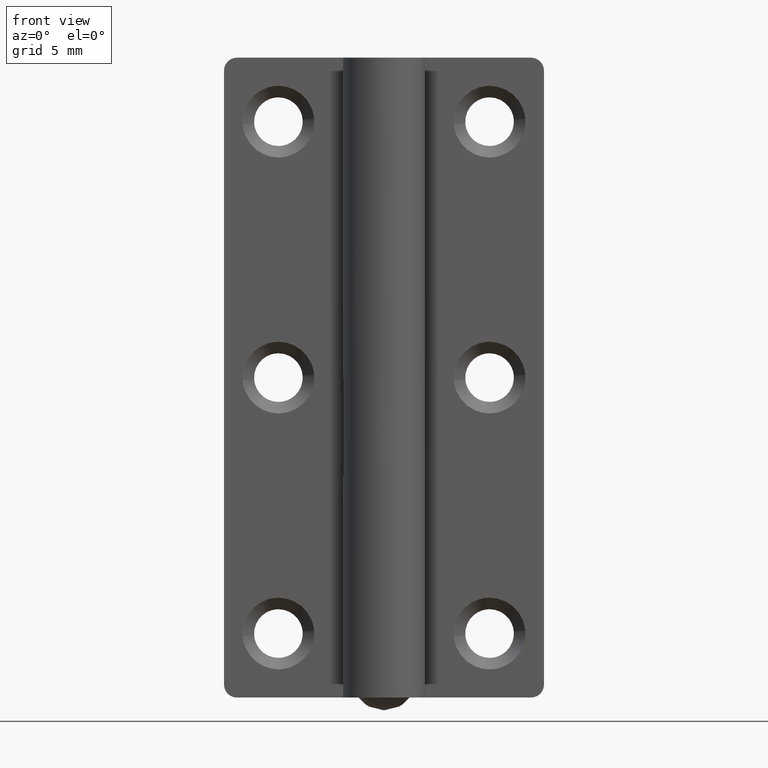
[diagram: clean part render]
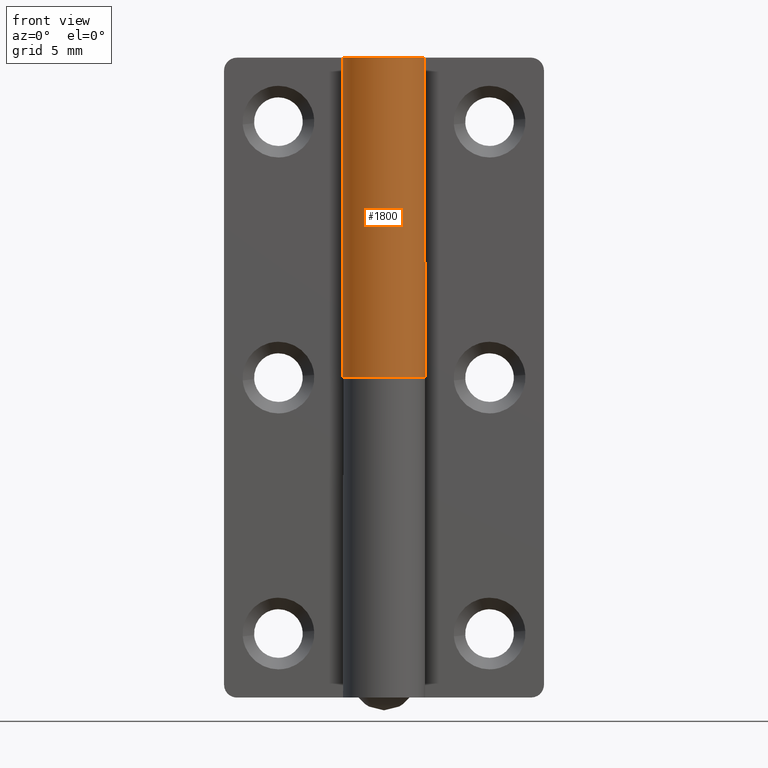
[diagram: same view with one face highlighted and labeled with its STEP entity id]
A machine part, front view. The second image highlights one B-rep face of the part: STEP entity #1800.
In plain terms, the highlighted face is a freeform B-spline surface patch.
Its self-contained STEP definition (entity closure, byte-faithful):
#1358=CARTESIAN_POINT('',(-2.537223684155205,1.950000609375005,25.0));
#1359=VERTEX_POINT('',#1358);
#1360=CARTESIAN_POINT('',(0.0,3.200000999999955,25.0));
#1361=VERTEX_POINT('',#1360);
#1362=CARTESIAN_POINT('',(-2.537223684155205,1.950000609375005,25.0));
#1363=CARTESIAN_POINT('',(-4.085161598527525,-0.064083242222381,25.0));
#1364=CARTESIAN_POINT('',(-2.474811676580616,-2.028623564257609,25.0));
#1365=CARTESIAN_POINT('',(-0.864461754633708,-3.993163886292836,25.0));
#1366=CARTESIAN_POINT('',(1.414214004314828,-2.870540915925223,25.0));
#1367=CARTESIAN_POINT('',(3.692889763263367,-1.747917945557609,25.0));
#1368=CARTESIAN_POINT('',(3.116547785732045,0.726041527221197,25.0));
#1369=CARTESIAN_POINT('',(2.540205808200723,3.200001000000000,25.0));
#1370=CARTESIAN_POINT('',(0.0,3.200001000000000,25.0));
#1378=(BOUNDED_CURVE()B_SPLINE_CURVE(2,(#1362,#1363,#1364,#1365,#1366,#1367,#1368,#1369,#1370),.UNSPECIFIED.,.F.,.U.)B_SPLINE_CURVE_WITH_KNOTS((3,2,2,2,3),(0.0,0.250000000000000,0.500000000000000,0.750000000000000,1.0),.UNSPECIFIED.)CURVE()GEOMETRIC_REPRESENTATION_ITEM()RATIONAL_B_SPLINE_CURVE((1.0,0.783226629512223,1.0,0.783226629512223,1.0,0.783226629512223,1.0,0.783226629512223,1.0))REPRESENTATION_ITEM(''));
#1379=EDGE_CURVE('',#1359,#1361,#1378,.T.);
#1615=CARTESIAN_POINT('',(-2.537223684155205,1.950000609375005,50.0));
#1616=VERTEX_POINT('',#1615);
#1617=CARTESIAN_POINT('',(-2.537223684155205,1.950000609375005,25.0));
#1618=CARTESIAN_POINT('',(-2.537223684155205,1.950000609375005,50.0));
#1619=QUASI_UNIFORM_CURVE('',1,(#1617,#1618),.UNSPECIFIED.,.F.,.U.);
#1620=EDGE_CURVE('',#1359,#1616,#1619,.T.);
#1643=CARTESIAN_POINT('',(0.0,3.200001000000000,50.0));
#1644=VERTEX_POINT('',#1643);
#1645=CARTESIAN_POINT('',(0.0,3.200001000000000,50.0));
#1646=CARTESIAN_POINT('',(2.540205808200722,3.200001000000000,50.000000000000014));
#1647=CARTESIAN_POINT('',(3.116547785732045,0.726041527221199,50.0));
#1648=CARTESIAN_POINT('',(3.692889763263367,-1.747917945557606,50.000000000000014));
#1649=CARTESIAN_POINT('',(1.414214004314832,-2.870540915925222,50.0));
#1650=CARTESIAN_POINT('',(-0.864461754633704,-3.993163886292837,50.000000000000014));
#1651=CARTESIAN_POINT('',(-2.474811676580615,-2.028623564257610,50.0));
#1652=CARTESIAN_POINT('',(-4.085161598527523,-0.064083242222384,50.000000000000014));
#1653=CARTESIAN_POINT('',(-2.537223684155206,1.950000609375003,50.0));
#1661=(BOUNDED_CURVE()B_SPLINE_CURVE(2,(#1645,#1646,#1647,#1648,#1649,#1650,#1651,#1652,#1653),.UNSPECIFIED.,.F.,.U.)B_SPLINE_CURVE_WITH_KNOTS((3,2,2,2,3),(0.0,0.250000000000000,0.500000000000000,0.750000000000000,1.0),.UNSPECIFIED.)CURVE()GEOMETRIC_REPRESENTATION_ITEM()RATIONAL_B_SPLINE_CURVE((1.0,0.783226629512223,1.0,0.783226629512223,1.0,0.783226629512223,1.0,0.783226629512223,1.0))REPRESENTATION_ITEM(''));
#1662=EDGE_CURVE('',#1644,#1616,#1661,.T.);
#1746=CARTESIAN_POINT('',(0.0,3.200000999999955,25.0));
#1747=CARTESIAN_POINT('',(0.0,3.200001000000000,50.0));
#1748=QUASI_UNIFORM_CURVE('',1,(#1746,#1747),.UNSPECIFIED.,.F.,.U.);
#1749=EDGE_CURVE('',#1361,#1644,#1748,.T.);
#1772=CARTESIAN_POINT('',(-0.109204317649245,3.198137085399523,24.375000000000000));
#1773=CARTESIAN_POINT('',(-0.109204317649245,3.198137085399523,50.640625000000007));
#1774=CARTESIAN_POINT('',(4.033680621234337,3.339600978525166,24.374999999999993));
#1775=CARTESIAN_POINT('',(4.033680621234337,3.339600978525166,50.640625000000000));
#1776=CARTESIAN_POINT('',(3.121576495909074,-0.704106938034996,24.375000000000000));
#1777=CARTESIAN_POINT('',(3.121576495909074,-0.704106938034996,50.640625000000007));
#1778=CARTESIAN_POINT('',(2.209472370583809,-4.747814854595157,24.374999999999993));
#1779=CARTESIAN_POINT('',(2.209472370583809,-4.747814854595157,50.640625000000000));
#1780=CARTESIAN_POINT('',(-1.471531853618147,-2.841584136320467,24.375000000000000));
#1781=CARTESIAN_POINT('',(-1.471531853618147,-2.841584136320467,50.640625000000007));
#1782=CARTESIAN_POINT('',(-5.152536077820102,-0.935353418045775,24.374999999999993));
#1783=CARTESIAN_POINT('',(-5.152536077820102,-0.935353418045775,50.640625000000000));
#1784=CARTESIAN_POINT('',(-2.376406985812240,2.143057684194192,24.375000000000000));
#1785=CARTESIAN_POINT('',(-2.376406985812240,2.143057684194192,50.640625000000007));
#1793=(BOUNDED_SURFACE()B_SPLINE_SURFACE(1,2,((#1772,#1774,#1776,#1778,#1780,#1782,#1784),(#1773,#1775,#1777,#1779,#1781,#1783,#1785)),.UNSPECIFIED.,.F.,.F.,.U.)B_SPLINE_SURFACE_WITH_KNOTS((2,2),(3,2,2,3),(0.0,26.265625000000011),(0.0,6.289135669780945,12.578271339561891,18.867407009342831),.UNSPECIFIED.)GEOMETRIC_REPRESENTATION_ITEM()RATIONAL_B_SPLINE_SURFACE(((1.0,0.611066621529600,1.0,0.611066621529600,1.0,0.611066621529600,1.0),(1.0,0.611066621529600,1.0,0.611066621529600,1.0,0.611066621529600,1.0)))REPRESENTATION_ITEM('')SURFACE());
#1794=ORIENTED_EDGE('',*,*,#1379,.T.);
#1795=ORIENTED_EDGE('',*,*,#1749,.T.);
#1796=ORIENTED_EDGE('',*,*,#1662,.T.);
#1797=ORIENTED_EDGE('',*,*,#1620,.F.);
#1798=EDGE_LOOP('',(#1794,#1795,#1796,#1797));
#1799=FACE_OUTER_BOUND('',#1798,.T.);
#1800=ADVANCED_FACE('',(#1799),#1793,.T.);